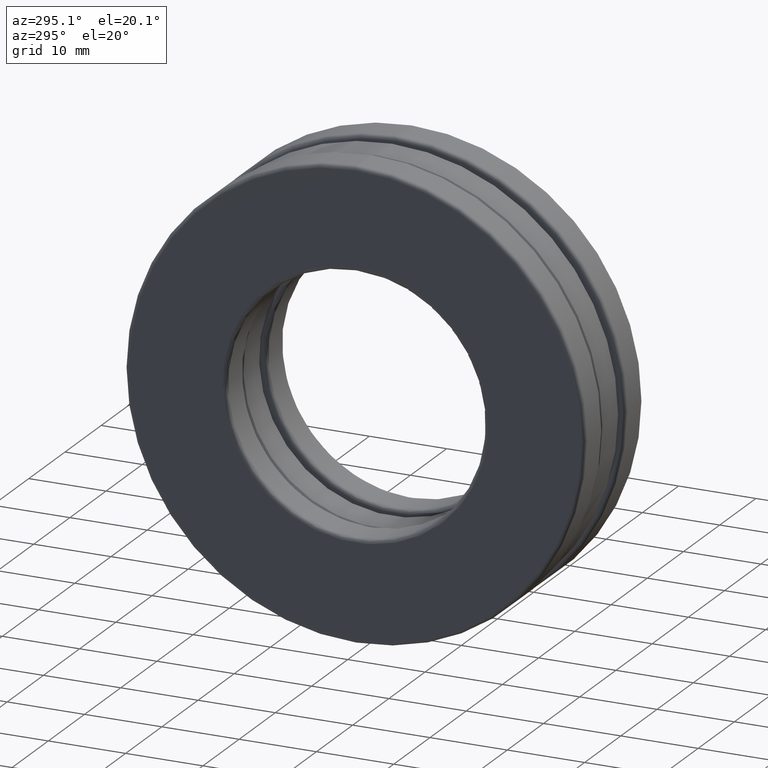
[diagram: clean part render]
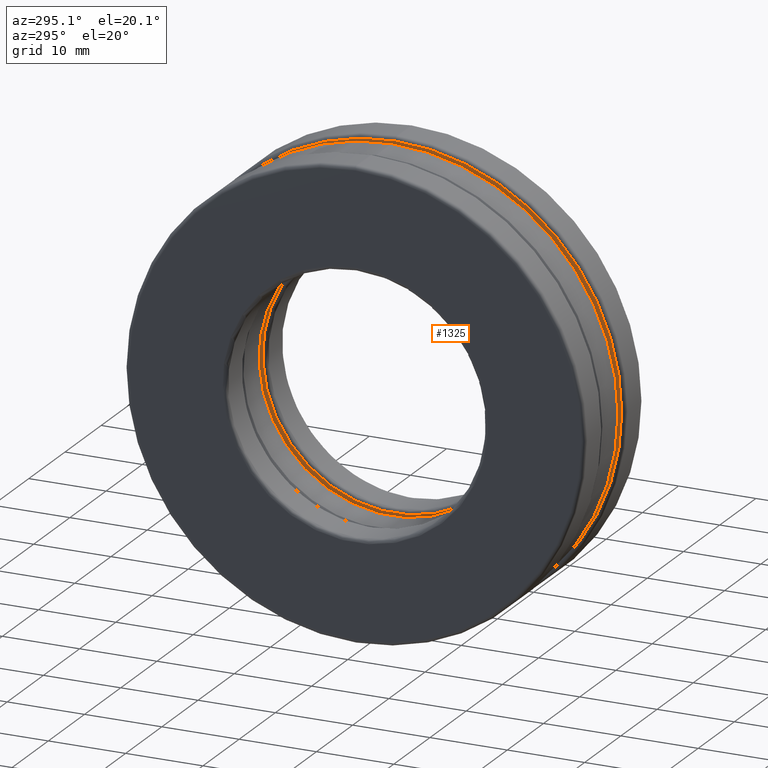
[diagram: same view with one face highlighted and labeled with its STEP entity id]
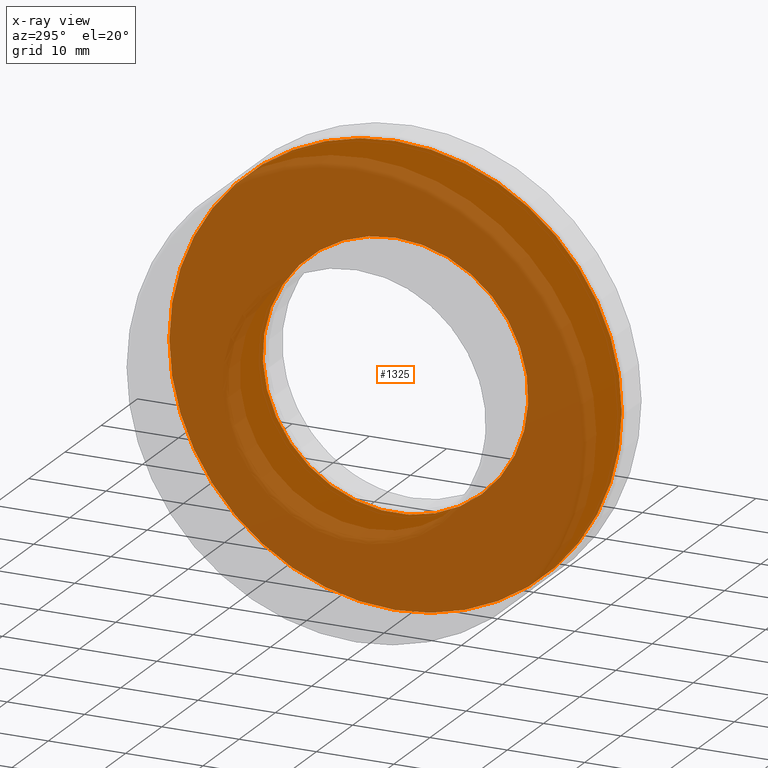
[diagram: x-ray of the same camera — body ghosted, the highlighted face saturated]
A machine part, auxiliary view. The second image highlights one B-rep face of the part: STEP entity #1325.
The next image is the same camera in x-ray: the body ghosted, the highlighted face saturated — about 79% of this face is hidden behind the body in this view.
In plain terms, the highlighted planar face has unit normal (1, 0, 0).
Its self-contained STEP definition (entity closure, byte-faithful):
#15 = EDGE_CURVE ( 'NONE', #57, #57, #255, .T. ) ;
#54 = CARTESIAN_POINT ( 'NONE',  ( 0.1250000000000000000, 0.0000000000000000000, 0.0000000000000000000 ) ) ;
#57 = VERTEX_POINT ( 'NONE', #1329 ) ;
#64 = DIRECTION ( 'NONE',  ( -1.000000000000000000, -0.0000000000000000000, -0.0000000000000000000 ) ) ;
#162 = CARTESIAN_POINT ( 'NONE',  ( 0.1250000000000000000, 0.0000000000000000000, 0.0000000000000000000 ) ) ;
#169 = DIRECTION ( 'NONE',  ( 0.0000000000000000000, 0.0000000000000000000, 1.000000000000000000 ) ) ;
#173 = DIRECTION ( 'NONE',  ( 1.000000000000000000, 0.0000000000000000000, 0.0000000000000000000 ) ) ;
#188 = DIRECTION ( 'NONE',  ( 0.0000000000000000000, 0.0000000000000000000, 1.000000000000000000 ) ) ;
#219 = CARTESIAN_POINT ( 'NONE',  ( 0.1250000000000000000, 0.0000000000000000000, 1.151875000000000200 ) ) ;
#255 = CIRCLE ( 'NONE', #674, 0.6762500000000000200 ) ;
#271 = PLANE ( 'NONE',  #301 ) ;
#301 = AXIS2_PLACEMENT_3D ( 'NONE', #54, #173, #410 ) ;
#400 = DIRECTION ( 'NONE',  ( -1.000000000000000000, -0.0000000000000000000, -0.0000000000000000000 ) ) ;
#410 = DIRECTION ( 'NONE',  ( 0.0000000000000000000, 0.0000000000000000000, -1.000000000000000000 ) ) ;
#567 = EDGE_LOOP ( 'NONE', ( #668 ) ) ;
#668 = ORIENTED_EDGE ( 'NONE', *, *, #1367, .T. ) ;
#674 = AXIS2_PLACEMENT_3D ( 'NONE', #962, #64, #169 ) ;
#700 = EDGE_LOOP ( 'NONE', ( #1052 ) ) ;
#745 = FACE_BOUND ( 'NONE', #700, .T. ) ;
#782 = FACE_OUTER_BOUND ( 'NONE', #567, .T. ) ;
#810 = CIRCLE ( 'NONE', #1271, 1.151875000000000200 ) ;
#962 = CARTESIAN_POINT ( 'NONE',  ( 0.1250000000000000000, 0.0000000000000000000, 0.0000000000000000000 ) ) ;
#1052 = ORIENTED_EDGE ( 'NONE', *, *, #15, .F. ) ;
#1188 = VERTEX_POINT ( 'NONE', #219 ) ;
#1271 = AXIS2_PLACEMENT_3D ( 'NONE', #162, #400, #188 ) ;
#1325 = ADVANCED_FACE ( 'NONE', ( #745, #782 ), #271, .F. ) ;
#1329 = CARTESIAN_POINT ( 'NONE',  ( 0.1250000000000000000, 0.0000000000000000000, 0.6762500000000000200 ) ) ;
#1367 = EDGE_CURVE ( 'NONE', #1188, #1188, #810, .T. ) ;